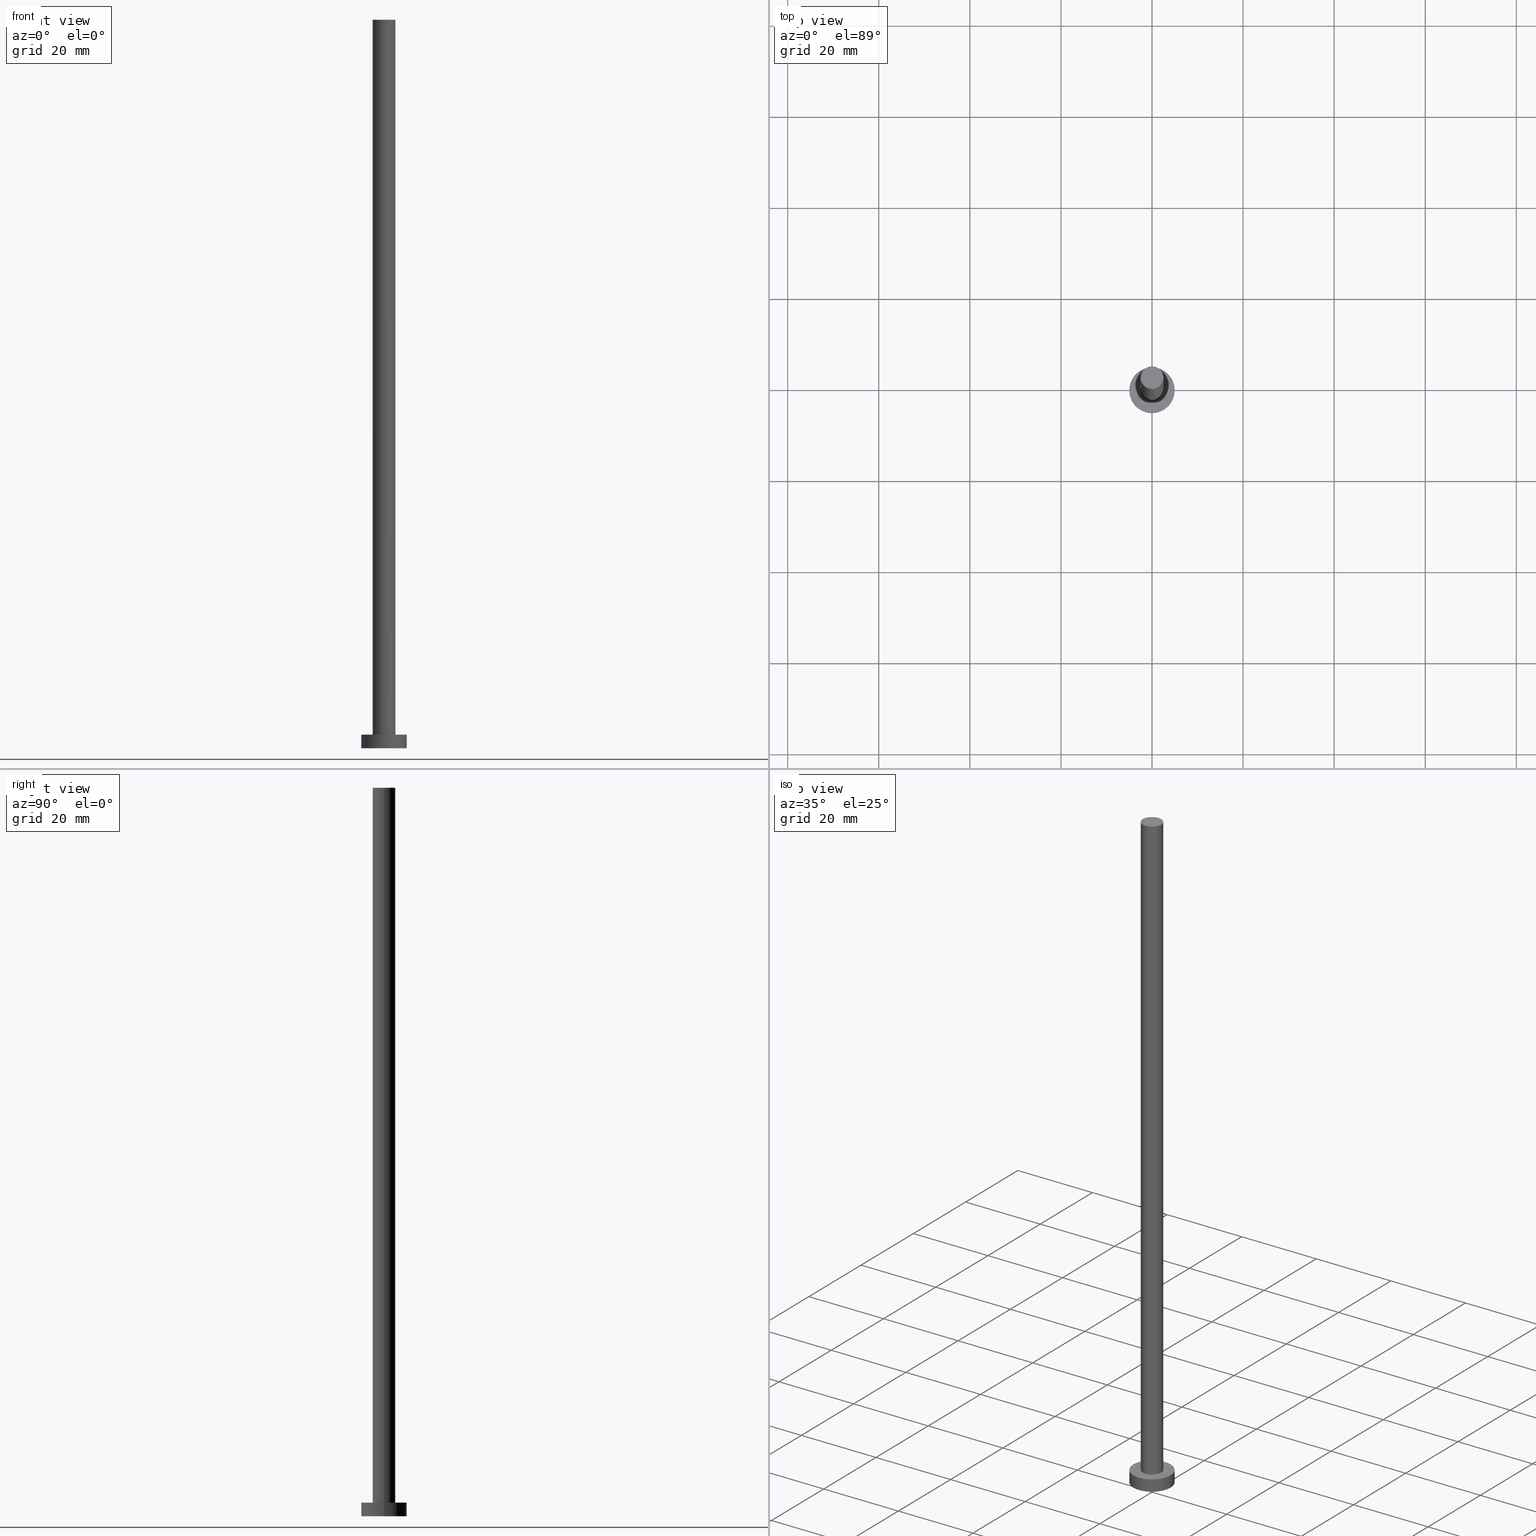
[diagram: canonical four-view strip — front | top / right | iso, engineering-drawing reading convention]
A machine part, canonical four-view strip (front | top / right | iso — engineering-drawing reading convention). The complete STEP part file that produces these views, byte-faithful:
ISO-10303-21;
HEADER;
FILE_DESCRIPTION (( 'STEP AP203' ),
    '1' );
FILE_NAME ('cc21.STEP',
    '2023-02-12T11:51:41',
    ( '' ),
    ( '' ),
    'SwSTEP 2.0',
    'SolidWorks 2019',
    '' );
FILE_SCHEMA (( 'CONFIG_CONTROL_DESIGN' ));
ENDSEC;

DATA;
#1 = AXIS2_PLACEMENT_3D ( 'NONE', #131, #68, #170 ) ;
#2 = APPROVAL_STATUS ( 'not_yet_approved' ) ;
#3 = CYLINDRICAL_SURFACE ( 'NONE', #151, 2.500000000000000000 ) ;
#4 = EDGE_CURVE ( 'NONE', #156, #182, #149, .T. ) ;
#5 = APPLICATION_CONTEXT ( 'configuration controlled 3d designs of mechanical parts and assemblies' ) ;
#6 = LINE ( 'NONE', #249, #166 ) ;
#7 = ADVANCED_BREP_SHAPE_REPRESENTATION ( 'cc21', ( #16, #168 ), #134 ) ;
#8 = DIRECTION ( 'NONE',  ( 0.000000000000000000, 0.000000000000000000, 1.000000000000000000 ) ) ;
#9 = CARTESIAN_POINT ( 'NONE',  ( 5.000000000000000000, 6.123233995736766282E-16, 0.000000000000000000 ) ) ;
#10 = FACE_OUTER_BOUND ( 'NONE', #46, .T. ) ;
#11 = CC_DESIGN_PERSON_AND_ORGANIZATION_ASSIGNMENT ( #238, #228, ( #39 ) ) ;
#12 = PERSON ( 'NEUR�EN�', 'NEUR�EN�', 'NEUR�EN�', ('NEUR�EN�'), ('NEUR�EN�'), ('NEUR�EN�') ) ;
#13 = EDGE_CURVE ( 'NONE', #253, #31, #86, .T. ) ;
#14 = DIRECTION ( 'NONE',  ( 0.000000000000000000, 0.000000000000000000, 1.000000000000000000 ) ) ;
#15 = ORIENTED_EDGE ( 'NONE', *, *, #154, .F. ) ;
#16 = MANIFOLD_SOLID_BREP ( 'P�idat vysunut�m3', #132 ) ;
#17 = ORIENTED_EDGE ( 'NONE', *, *, #107, .T. ) ;
#18 = AXIS2_PLACEMENT_3D ( 'NONE', #230, #43, #109 ) ;
#19 = ORIENTED_EDGE ( 'NONE', *, *, #163, .T. ) ;
#20 = PERSON_AND_ORGANIZATION_ROLE ( 'design_supplier' ) ;
#21 = PERSON_AND_ORGANIZATION ( #12, #22 ) ;
#22 = ORGANIZATION ( 'NEUR�EN�', 'NEUR�EN�', '' ) ;
#23 = CARTESIAN_POINT ( 'NONE',  ( 0.000000000000000000, 0.000000000000000000, 3.000000000000000000 ) ) ;
#24 = DATE_AND_TIME ( #178, #173 ) ;
#25 = AXIS2_PLACEMENT_3D ( 'NONE', #246, #89, #64 ) ;
#26 = APPROVAL_PERSON_ORGANIZATION ( #118, #225, #181 ) ;
#27 = FACE_BOUND ( 'NONE', #123, .T. ) ;
#28 = EDGE_LOOP ( 'NONE', ( #112, #94, #237, #130 ) ) ;
#29 = ORIENTED_EDGE ( 'NONE', *, *, #4, .F. ) ;
#30 = CARTESIAN_POINT ( 'NONE',  ( -5.000000000000000000, 0.000000000000000000, 0.000000000000000000 ) ) ;
#31 = VERTEX_POINT ( 'NONE', #9 ) ;
#32 = DIRECTION ( 'NONE',  ( 1.000000000000000000, 0.000000000000000000, 0.000000000000000000 ) ) ;
#33 = PERSON_AND_ORGANIZATION ( #12, #22 ) ;
#34 = CC_DESIGN_PERSON_AND_ORGANIZATION_ASSIGNMENT ( #103, #161, ( #227 ) ) ;
#35 = DATE_AND_TIME ( #57, #93 ) ;
#36 = CALENDAR_DATE ( 2023, 12, 2 ) ;
#37 = EDGE_LOOP ( 'NONE', ( #66, #51, #19, #15 ) ) ;
#38 = DIRECTION ( 'NONE',  ( -1.000000000000000000, 0.000000000000000000, 0.000000000000000000 ) ) ;
#39 = PRODUCT_DEFINITION ( 'NEZN�M�', '', #210, #115 ) ;
#40 = FACE_OUTER_BOUND ( 'NONE', #194, .T. ) ;
#41 = AXIS2_PLACEMENT_3D ( 'NONE', #121, #102, #245 ) ;
#42 = APPROVAL_DATE_TIME ( #77, #222 ) ;
#43 = DIRECTION ( 'NONE',  ( 0.000000000000000000, 0.000000000000000000, 1.000000000000000000 ) ) ;
#44 = DIRECTION ( 'NONE',  ( -0.000000000000000000, -0.000000000000000000, -1.000000000000000000 ) ) ;
#45 = CARTESIAN_POINT ( 'NONE',  ( -5.000000000000000000, 0.000000000000000000, 3.000000000000000000 ) ) ;
#46 = EDGE_LOOP ( 'NONE', ( #87, #17 ) ) ;
#47 = ORIENTED_EDGE ( 'NONE', *, *, #192, .T. ) ;
#48 = FACE_OUTER_BOUND ( 'NONE', #137, .T. ) ;
#49 = CIRCLE ( 'NONE', #1, 2.500000000000000000 ) ;
#50 = DIRECTION ( 'NONE',  ( 1.000000000000000000, 0.000000000000000000, 0.000000000000000000 ) ) ;
#51 = ORIENTED_EDGE ( 'NONE', *, *, #4, .T. ) ;
#52 = APPROVAL_PERSON_ORGANIZATION ( #207, #222, #82 ) ;
#53 = EDGE_CURVE ( 'NONE', #31, #251, #96, .T. ) ;
#54 =( LENGTH_UNIT ( ) NAMED_UNIT ( * ) SI_UNIT ( .MILLI., .METRE. ) );
#55 = CC_DESIGN_APPROVAL ( #225, ( #39 ) ) ;
#56 = ADVANCED_FACE ( 'NONE', ( #165 ), #240, .T. ) ;
#57 = CALENDAR_DATE ( 2023, 12, 2 ) ;
#58 = DIRECTION ( 'NONE',  ( -0.000000000000000000, -0.000000000000000000, -1.000000000000000000 ) ) ;
#59 = VECTOR ( 'NONE', #248, 1000.000000000000000 ) ;
#60 = PERSON_AND_ORGANIZATION ( #12, #22 ) ;
#61 = DIRECTION ( 'NONE',  ( 0.000000000000000000, 0.000000000000000000, 1.000000000000000000 ) ) ;
#62 = APPROVAL_DATE_TIME ( #147, #212 ) ;
#63 = ORIENTED_EDGE ( 'NONE', *, *, #163, .F. ) ;
#64 = DIRECTION ( 'NONE',  ( -1.000000000000000000, 0.000000000000000000, 0.000000000000000000 ) ) ;
#65 = DIRECTION ( 'NONE',  ( 1.000000000000000000, 0.000000000000000000, -0.000000000000000000 ) ) ;
#66 = ORIENTED_EDGE ( 'NONE', *, *, #192, .F. ) ;
#67 = PRODUCT_RELATED_PRODUCT_CATEGORY ( 'detail', '', ( #113 ) ) ;
#68 = DIRECTION ( 'NONE',  ( 0.000000000000000000, 0.000000000000000000, 1.000000000000000000 ) ) ;
#69 = DIRECTION ( 'NONE',  ( -0.000000000000000000, -0.000000000000000000, -1.000000000000000000 ) ) ;
#70 = PRODUCT_DEFINITION_SHAPE ( 'NONE', 'NONE',  #39 ) ;
#71 = DIRECTION ( 'NONE',  ( 0.000000000000000000, 0.000000000000000000, 1.000000000000000000 ) ) ;
#72 = DIRECTION ( 'NONE',  ( 1.000000000000000000, 0.000000000000000000, -0.000000000000000000 ) ) ;
#73 = EDGE_LOOP ( 'NONE', ( #199, #110, #117, #114 ) ) ;
#74 = APPLICATION_PROTOCOL_DEFINITION ( 'international standard', 'config_control_design', 1994, #5 ) ;
#75 = AXIS2_PLACEMENT_3D ( 'NONE', #152, #129, #215 ) ;
#76 = MECHANICAL_CONTEXT ( 'NONE', #5, 'mechanical' ) ;
#77 = DATE_AND_TIME ( #101, #200 ) ;
#78 = CIRCLE ( 'NONE', #41, 2.500000000000000000 ) ;
#79 = CIRCLE ( 'NONE', #98, 2.500000000000000000 ) ;
#80 = SECURITY_CLASSIFICATION_LEVEL ( 'unclassified' ) ;
#81 = DIRECTION ( 'NONE',  ( -1.000000000000000000, 0.000000000000000000, 0.000000000000000000 ) ) ;
#82 = APPROVAL_ROLE ( '' ) ;
#83 = AXIS2_PLACEMENT_3D ( 'NONE', #155, #8, #65 ) ;
#84 = CC_DESIGN_APPROVAL ( #222, ( #210 ) ) ;
#85 = PLANE ( 'NONE',  #138 ) ;
#86 = LINE ( 'NONE', #108, #59 ) ;
#87 = ORIENTED_EDGE ( 'NONE', *, *, #176, .T. ) ;
#88 = CC_DESIGN_PERSON_AND_ORGANIZATION_ASSIGNMENT ( #33, #141, ( #113 ) ) ;
#89 = DIRECTION ( 'NONE',  ( -0.000000000000000000, -0.000000000000000000, -1.000000000000000000 ) ) ;
#90 = APPROVAL_STATUS ( 'not_yet_approved' ) ;
#91 = DIRECTION ( 'NONE',  ( 0.000000000000000000, 0.000000000000000000, 1.000000000000000000 ) ) ;
#92 = AXIS2_PLACEMENT_3D ( 'NONE', #255, #71, #72 ) ;
#93 = LOCAL_TIME ( 12, 51, 41.00000000000000000, #229 ) ;
#94 = ORIENTED_EDGE ( 'NONE', *, *, #13, .T. ) ;
#95 = EDGE_CURVE ( 'NONE', #159, #182, #78, .T. ) ;
#96 = CIRCLE ( 'NONE', #242, 5.000000000000000000 ) ;
#97 = CARTESIAN_POINT ( 'NONE',  ( 0.000000000000000000, 0.000000000000000000, 160.0000000000000000 ) ) ;
#98 = AXIS2_PLACEMENT_3D ( 'NONE', #97, #91, #32 ) ;
#99 = CC_DESIGN_PERSON_AND_ORGANIZATION_ASSIGNMENT ( #60, #20, ( #210 ) ) ;
#100 = CIRCLE ( 'NONE', #18, 5.000000000000000000 ) ;
#101 = CALENDAR_DATE ( 2023, 12, 2 ) ;
#102 = DIRECTION ( 'NONE',  ( 0.000000000000000000, 0.000000000000000000, 1.000000000000000000 ) ) ;
#103 = PERSON_AND_ORGANIZATION ( #12, #22 ) ;
#104 = DIRECTION ( 'NONE',  ( 1.000000000000000000, 0.000000000000000000, 0.000000000000000000 ) ) ;
#105 = FACE_OUTER_BOUND ( 'NONE', #73, .T. ) ;
#106 = ADVANCED_FACE ( 'NONE', ( #40 ), #3, .T. ) ;
#107 = EDGE_CURVE ( 'NONE', #253, #219, #224, .T. ) ;
#108 = CARTESIAN_POINT ( 'NONE',  ( 5.000000000000000000, 6.123233995736766282E-16, 3.000000000000000000 ) ) ;
#109 = DIRECTION ( 'NONE',  ( 1.000000000000000000, 0.000000000000000000, 0.000000000000000000 ) ) ;
#110 = ORIENTED_EDGE ( 'NONE', *, *, #176, .F. ) ;
#111 = CARTESIAN_POINT ( 'NONE',  ( 2.500000000000000000, 3.061616997868383141E-16, 160.0000000000000000 ) ) ;
#112 = ORIENTED_EDGE ( 'NONE', *, *, #107, .F. ) ;
#113 = PRODUCT ( 'cc21', 'cc21', '', ( #76 ) ) ;
#114 = ORIENTED_EDGE ( 'NONE', *, *, #139, .T. ) ;
#115 = DESIGN_CONTEXT ( 'detailed design', #127, 'design' ) ;
#116 = CC_DESIGN_DATE_AND_TIME_ASSIGNMENT ( #167, #244, ( #227 ) ) ;
#117 = ORIENTED_EDGE ( 'NONE', *, *, #204, .T. ) ;
#118 = PERSON_AND_ORGANIZATION ( #12, #22 ) ;
#119 = CIRCLE ( 'NONE', #160, 2.500000000000000000 ) ;
#120 = PERSON_AND_ORGANIZATION ( #12, #22 ) ;
#121 = CARTESIAN_POINT ( 'NONE',  ( 0.000000000000000000, 0.000000000000000000, 3.000000000000000000 ) ) ;
#122 = APPROVAL_DATE_TIME ( #24, #225 ) ;
#123 = EDGE_LOOP ( 'NONE', ( #157, #63 ) ) ;
#124 = DIRECTION ( 'NONE',  ( -0.000000000000000000, -0.000000000000000000, -1.000000000000000000 ) ) ;
#125 = ADVANCED_FACE ( 'NONE', ( #105 ), #162, .T. ) ;
#126 = DIRECTION ( 'NONE',  ( 0.000000000000000000, 0.000000000000000000, 1.000000000000000000 ) ) ;
#127 = APPLICATION_CONTEXT ( 'configuration controlled 3d designs of mechanical parts and assemblies' ) ;
#128 = APPROVAL_PERSON_ORGANIZATION ( #120, #212, #211 ) ;
#129 = DIRECTION ( 'NONE',  ( 0.000000000000000000, 0.000000000000000000, 1.000000000000000000 ) ) ;
#130 = ORIENTED_EDGE ( 'NONE', *, *, #204, .F. ) ;
#131 = CARTESIAN_POINT ( 'NONE',  ( 0.000000000000000000, 0.000000000000000000, 3.000000000000000000 ) ) ;
#132 = CLOSED_SHELL ( 'NONE', ( #197, #56, #125, #179, #143, #106, #234 ) ) ;
#133 = ORIENTED_EDGE ( 'NONE', *, *, #254, .T. ) ;
#134 =( GEOMETRIC_REPRESENTATION_CONTEXT ( 3 ) GLOBAL_UNCERTAINTY_ASSIGNED_CONTEXT ( ( #223 ) ) GLOBAL_UNIT_ASSIGNED_CONTEXT ( ( #54, #140, #193 ) ) REPRESENTATION_CONTEXT ( 'NONE', 'WORKASPACE' ) );
#135 = CC_DESIGN_PERSON_AND_ORGANIZATION_ASSIGNMENT ( #21, #148, ( #210 ) ) ;
#136 = DIRECTION ( 'NONE',  ( 0.000000000000000000, 0.000000000000000000, 1.000000000000000000 ) ) ;
#137 = EDGE_LOOP ( 'NONE', ( #203, #184 ) ) ;
#138 = AXIS2_PLACEMENT_3D ( 'NONE', #217, #136, #186 ) ;
#139 = EDGE_CURVE ( 'NONE', #251, #31, #100, .T. ) ;
#140 =( NAMED_UNIT ( * ) PLANE_ANGLE_UNIT ( ) SI_UNIT ( $, .RADIAN. ) );
#141 = PERSON_AND_ORGANIZATION_ROLE ( 'design_owner' ) ;
#142 = CALENDAR_DATE ( 2023, 12, 2 ) ;
#143 = ADVANCED_FACE ( 'NONE', ( #48 ), #85, .F. ) ;
#144 = VECTOR ( 'NONE', #69, 1000.000000000000000 ) ;
#145 = COORDINATED_UNIVERSAL_TIME_OFFSET ( 1, 0, .AHEAD. ) ;
#146 = CARTESIAN_POINT ( 'NONE',  ( 0.000000000000000000, 0.000000000000000000, 3.000000000000000000 ) ) ;
#147 = DATE_AND_TIME ( #142, #214 ) ;
#148 = PERSON_AND_ORGANIZATION_ROLE ( 'creator' ) ;
#149 = LINE ( 'NONE', #185, #189 ) ;
#150 = CC_DESIGN_DATE_AND_TIME_ASSIGNMENT ( #35, #202, ( #39 ) ) ;
#151 = AXIS2_PLACEMENT_3D ( 'NONE', #180, #124, #81 ) ;
#152 = CARTESIAN_POINT ( 'NONE',  ( 0.000000000000000000, 0.000000000000000000, 3.000000000000000000 ) ) ;
#153 = DIRECTION ( 'NONE',  ( 0.000000000000000000, 0.000000000000000000, 1.000000000000000000 ) ) ;
#154 = EDGE_CURVE ( 'NONE', #221, #159, #6, .T. ) ;
#155 = CARTESIAN_POINT ( 'NONE',  ( 0.000000000000000000, 0.000000000000000000, 3.000000000000000000 ) ) ;
#156 = VERTEX_POINT ( 'NONE', #111 ) ;
#157 = ORIENTED_EDGE ( 'NONE', *, *, #95, .F. ) ;
#158 = APPLICATION_PROTOCOL_DEFINITION ( 'international standard', 'config_control_design', 1994, #127 ) ;
#159 = VERTEX_POINT ( 'NONE', #188 ) ;
#160 = AXIS2_PLACEMENT_3D ( 'NONE', #169, #153, #50 ) ;
#161 = PERSON_AND_ORGANIZATION_ROLE ( 'classification_officer' ) ;
#162 = CYLINDRICAL_SURFACE ( 'NONE', #247, 5.000000000000000000 ) ;
#163 = EDGE_CURVE ( 'NONE', #182, #159, #49, .T. ) ;
#164 = COORDINATED_UNIVERSAL_TIME_OFFSET ( 1, 0, .AHEAD. ) ;
#165 = FACE_OUTER_BOUND ( 'NONE', #28, .T. ) ;
#166 = VECTOR ( 'NONE', #191, 1000.000000000000000 ) ;
#167 = DATE_AND_TIME ( #36, #239 ) ;
#168 = AXIS2_PLACEMENT_3D ( 'NONE', #196, #14, #226 ) ;
#169 = CARTESIAN_POINT ( 'NONE',  ( 0.000000000000000000, 0.000000000000000000, 160.0000000000000000 ) ) ;
#170 = DIRECTION ( 'NONE',  ( 1.000000000000000000, 0.000000000000000000, 0.000000000000000000 ) ) ;
#171 = CARTESIAN_POINT ( 'NONE',  ( 2.500000000000000000, 3.061616997868383141E-16, 3.000000000000000000 ) ) ;
#172 = LINE ( 'NONE', #250, #144 ) ;
#173 = LOCAL_TIME ( 12, 51, 41.00000000000000000, #145 ) ;
#174 = ORIENTED_EDGE ( 'NONE', *, *, #95, .T. ) ;
#175 = AXIS2_PLACEMENT_3D ( 'NONE', #209, #61, #104 ) ;
#176 = EDGE_CURVE ( 'NONE', #219, #253, #198, .T. ) ;
#177 = COORDINATED_UNIVERSAL_TIME_OFFSET ( 1, 0, .AHEAD. ) ;
#178 = CALENDAR_DATE ( 2023, 12, 2 ) ;
#179 = ADVANCED_FACE ( 'NONE', ( #27, #10 ), #190, .T. ) ;
#180 = CARTESIAN_POINT ( 'NONE',  ( 0.000000000000000000, 0.000000000000000000, 160.0000000000000000 ) ) ;
#181 = APPROVAL_ROLE ( '' ) ;
#182 = VERTEX_POINT ( 'NONE', #171 ) ;
#183 = DIRECTION ( 'NONE',  ( -0.000000000000000000, -0.000000000000000000, -1.000000000000000000 ) ) ;
#184 = ORIENTED_EDGE ( 'NONE', *, *, #53, .F. ) ;
#185 = CARTESIAN_POINT ( 'NONE',  ( 2.500000000000000000, 3.061616997868383141E-16, 160.0000000000000000 ) ) ;
#186 = DIRECTION ( 'NONE',  ( 1.000000000000000000, 0.000000000000000000, -0.000000000000000000 ) ) ;
#187 = CARTESIAN_POINT ( 'NONE',  ( 0.000000000000000000, 0.000000000000000000, 0.000000000000000000 ) ) ;
#188 = CARTESIAN_POINT ( 'NONE',  ( -2.500000000000000000, 0.000000000000000000, 3.000000000000000000 ) ) ;
#189 = VECTOR ( 'NONE', #44, 1000.000000000000000 ) ;
#190 = PLANE ( 'NONE',  #83 ) ;
#191 = DIRECTION ( 'NONE',  ( -0.000000000000000000, -0.000000000000000000, -1.000000000000000000 ) ) ;
#192 = EDGE_CURVE ( 'NONE', #156, #221, #119, .T. ) ;
#193 =( NAMED_UNIT ( * ) SI_UNIT ( $, .STERADIAN. ) SOLID_ANGLE_UNIT ( ) );
#194 = EDGE_LOOP ( 'NONE', ( #29, #216, #208, #174 ) ) ;
#195 = CC_DESIGN_SECURITY_CLASSIFICATION ( #227, ( #210 ) ) ;
#196 = CARTESIAN_POINT ( 'NONE',  ( 0.000000000000000000, 0.000000000000000000, 0.000000000000000000 ) ) ;
#197 = ADVANCED_FACE ( 'NONE', ( #218 ), #220, .T. ) ;
#198 = CIRCLE ( 'NONE', #75, 5.000000000000000000 ) ;
#199 = ORIENTED_EDGE ( 'NONE', *, *, #13, .F. ) ;
#200 = LOCAL_TIME ( 12, 51, 41.00000000000000000, #241 ) ;
#201 = CC_DESIGN_APPROVAL ( #212, ( #227 ) ) ;
#202 = DATE_TIME_ROLE ( 'creation_date' ) ;
#203 = ORIENTED_EDGE ( 'NONE', *, *, #139, .F. ) ;
#204 = EDGE_CURVE ( 'NONE', #219, #251, #172, .T. ) ;
#205 = APPROVAL_STATUS ( 'not_yet_approved' ) ;
#206 = DIRECTION ( 'NONE',  ( 1.000000000000000000, 0.000000000000000000, 0.000000000000000000 ) ) ;
#207 = PERSON_AND_ORGANIZATION ( #12, #22 ) ;
#208 = ORIENTED_EDGE ( 'NONE', *, *, #154, .T. ) ;
#209 = CARTESIAN_POINT ( 'NONE',  ( 0.000000000000000000, 0.000000000000000000, 3.000000000000000000 ) ) ;
#210 = PRODUCT_DEFINITION_FORMATION_WITH_SPECIFIED_SOURCE ( 'LIBOVOLN�', '', #113, .NOT_KNOWN. ) ;
#211 = APPROVAL_ROLE ( '' ) ;
#212 = APPROVAL ( #205, 'NEUR�EN�' ) ;
#213 = CARTESIAN_POINT ( 'NONE',  ( -2.500000000000000000, 0.000000000000000000, 160.0000000000000000 ) ) ;
#214 = LOCAL_TIME ( 12, 51, 41.00000000000000000, #177 ) ;
#215 = DIRECTION ( 'NONE',  ( 1.000000000000000000, 0.000000000000000000, 0.000000000000000000 ) ) ;
#216 = ORIENTED_EDGE ( 'NONE', *, *, #254, .F. ) ;
#217 = CARTESIAN_POINT ( 'NONE',  ( 0.000000000000000000, 0.000000000000000000, 0.000000000000000000 ) ) ;
#218 = FACE_OUTER_BOUND ( 'NONE', #37, .T. ) ;
#219 = VERTEX_POINT ( 'NONE', #45 ) ;
#220 = CYLINDRICAL_SURFACE ( 'NONE', #25, 2.500000000000000000 ) ;
#221 = VERTEX_POINT ( 'NONE', #213 ) ;
#222 = APPROVAL ( #2, 'NEUR�EN�' ) ;
#223 = UNCERTAINTY_MEASURE_WITH_UNIT (LENGTH_MEASURE( 1.000000000000000082E-05 ), #54, 'distance_accuracy_value', 'NONE');
#224 = CIRCLE ( 'NONE', #175, 5.000000000000000000 ) ;
#225 = APPROVAL ( #90, 'NEUR�EN�' ) ;
#226 = DIRECTION ( 'NONE',  ( 1.000000000000000000, 0.000000000000000000, 0.000000000000000000 ) ) ;
#227 = SECURITY_CLASSIFICATION ( '', '', #80 ) ;
#228 = PERSON_AND_ORGANIZATION_ROLE ( 'creator' ) ;
#229 = COORDINATED_UNIVERSAL_TIME_OFFSET ( 1, 0, .AHEAD. ) ;
#230 = CARTESIAN_POINT ( 'NONE',  ( 0.000000000000000000, 0.000000000000000000, 0.000000000000000000 ) ) ;
#231 = AXIS2_PLACEMENT_3D ( 'NONE', #23, #58, #38 ) ;
#232 = SHAPE_DEFINITION_REPRESENTATION ( #70, #7 ) ;
#233 = EDGE_LOOP ( 'NONE', ( #133, #47 ) ) ;
#234 = ADVANCED_FACE ( 'NONE', ( #235 ), #252, .T. ) ;
#235 = FACE_OUTER_BOUND ( 'NONE', #233, .T. ) ;
#236 = CARTESIAN_POINT ( 'NONE',  ( 5.000000000000000000, 6.123233995736766282E-16, 3.000000000000000000 ) ) ;
#237 = ORIENTED_EDGE ( 'NONE', *, *, #53, .T. ) ;
#238 = PERSON_AND_ORGANIZATION ( #12, #22 ) ;
#239 = LOCAL_TIME ( 12, 51, 41.00000000000000000, #164 ) ;
#240 = CYLINDRICAL_SURFACE ( 'NONE', #231, 5.000000000000000000 ) ;
#241 = COORDINATED_UNIVERSAL_TIME_OFFSET ( 1, 0, .AHEAD. ) ;
#242 = AXIS2_PLACEMENT_3D ( 'NONE', #187, #126, #206 ) ;
#243 = DIRECTION ( 'NONE',  ( -1.000000000000000000, 0.000000000000000000, 0.000000000000000000 ) ) ;
#244 = DATE_TIME_ROLE ( 'classification_date' ) ;
#245 = DIRECTION ( 'NONE',  ( 1.000000000000000000, 0.000000000000000000, 0.000000000000000000 ) ) ;
#246 = CARTESIAN_POINT ( 'NONE',  ( 0.000000000000000000, 0.000000000000000000, 160.0000000000000000 ) ) ;
#247 = AXIS2_PLACEMENT_3D ( 'NONE', #146, #183, #243 ) ;
#248 = DIRECTION ( 'NONE',  ( -0.000000000000000000, -0.000000000000000000, -1.000000000000000000 ) ) ;
#249 = CARTESIAN_POINT ( 'NONE',  ( -2.500000000000000000, 0.000000000000000000, 160.0000000000000000 ) ) ;
#250 = CARTESIAN_POINT ( 'NONE',  ( -5.000000000000000000, 0.000000000000000000, 3.000000000000000000 ) ) ;
#251 = VERTEX_POINT ( 'NONE', #30 ) ;
#252 = PLANE ( 'NONE',  #92 ) ;
#253 = VERTEX_POINT ( 'NONE', #236 ) ;
#254 = EDGE_CURVE ( 'NONE', #221, #156, #79, .T. ) ;
#255 = CARTESIAN_POINT ( 'NONE',  ( 0.000000000000000000, 0.000000000000000000, 160.0000000000000000 ) ) ;
ENDSEC;
END-ISO-10303-21;
